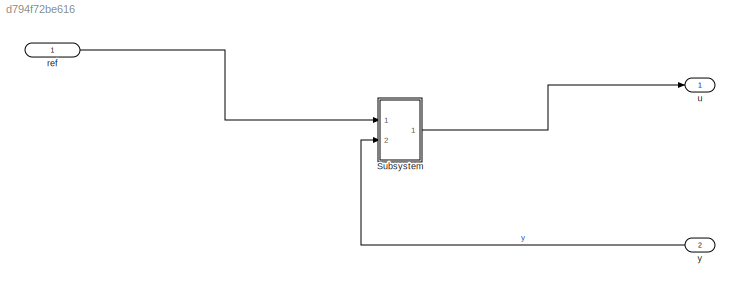
MODEL slx_d794f72be616
KIND model
CONFIG AbsTol = auto
CONFIG EnableMultiTasking = off
CONFIG FixedStep = auto
CONFIG MaxStep = auto
CONFIG MinStep = auto
CONFIG RelTol = 1e-3
CONFIG SampleTimeConstraint = Unconstrained
CONFIG Solver = VariableStepAuto
CONFIG SolverName = VariableStepAuto
CONFIG StartTime = 0.0
CONFIG StopTime = 10.0
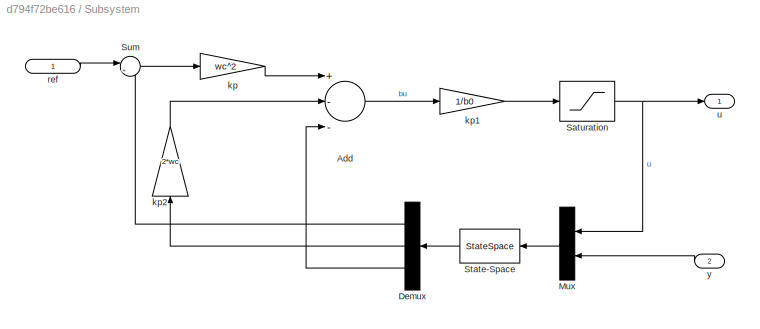
BLOCK [SubSystem] Subsystem
  Ports = [2, 1]
  RequestExecContextInheritance = off
BLOCK [Sum] Subsystem/Add
  InputSameDT = off
  Inputs = +--
  OutDataTypeStr = Inherit: Inherit via internal rule
  Ports = [3, 1]
  SaturateOnIntegerOverflow = off
BLOCK [Demux] Subsystem/Demux
  DisplayOption = bar
  Outputs = 3
  Ports = [1, 3]
BLOCK [Mux] Subsystem/Mux
  DisplayOption = bar
  Inputs = 2
  Ports = [2, 1]
BLOCK [Saturate] Subsystem/Saturation
  InputPortMap = u0
  LowerLimit = 0.01
  Ports = [1, 1]
  UpperLimit = 0.95
BLOCK [StateSpace] Subsystem/State-Space
  A = [-3*w0 1 0;-3*w0^2 0 1;-w0^3 0 0]
  B = [0 3*w0;b0 3*w0^2;0 w0^3]
  C = [1 0 0;0 1 0;0 0 1]
  D = [0 0;0 0;0 0]
  InitialCondition = 0
  Ports = [1, 1]
BLOCK [Sum] Subsystem/Sum
  IconShape = round
  InputSameDT = off
  Inputs = |+-
  OutDataTypeStr = Inherit: Inherit via internal rule
  Ports = [2, 1]
  SaturateOnIntegerOverflow = off
BLOCK [Gain] Subsystem/kp
  Gain = wc^2
  OutDataTypeStr = Inherit: Inherit via internal rule
  ParamDataTypeStr = Inherit: Inherit via internal rule
  SaturateOnIntegerOverflow = off
BLOCK [Gain] Subsystem/kp1
  Gain = 1/b0
  OutDataTypeStr = Inherit: Inherit via internal rule
  ParamDataTypeStr = Inherit: Inherit via internal rule
  SaturateOnIntegerOverflow = off
BLOCK [Gain] Subsystem/kp2
  Gain = 2*wc
  OutDataTypeStr = Inherit: Inherit via internal rule
  ParamDataTypeStr = Inherit: Inherit via internal rule
  SaturateOnIntegerOverflow = off
BLOCK [Inport] Subsystem/ref
  IconDisplay = Port number
BLOCK [Outport] Subsystem/u
  IconDisplay = Port number
BLOCK [Inport] Subsystem/y
  IconDisplay = Port number
  Port = 2
BLOCK [Inport] ref
  IconDisplay = Port number
BLOCK [Outport] u
  IconDisplay = Port number
BLOCK [Inport] y
  IconDisplay = Port number
  Port = 2
LINE Subsystem/Add:1 -> Subsystem/kp1:1
LINE Subsystem/Demux:1 -> Subsystem/Sum:2
LINE Subsystem/Demux:2 -> Subsystem/kp2:1
LINE Subsystem/Demux:3 -> Subsystem/Add:3
LINE Subsystem/Mux:1 -> Subsystem/State-Space:1
NET Subsystem/Saturation:1 -> Subsystem/Mux:1, Subsystem/u:1
LINE Subsystem/State-Space:1 -> Subsystem/Demux:1
LINE Subsystem/Sum:1 -> Subsystem/kp:1
LINE Subsystem/kp1:1 -> Subsystem/Saturation:1
LINE Subsystem/kp2:1 -> Subsystem/Add:2
LINE Subsystem/kp:1 -> Subsystem/Add:1
LINE Subsystem/ref:1 -> Subsystem/Sum:1
LINE Subsystem/y:1 -> Subsystem/Mux:2
LINE Subsystem:1 -> u:1
LINE ref:1 -> Subsystem:1
LINE y:1 -> Subsystem:2
note: NET lines group one-source signal fan-out (src -> all destinations, sorted); 1:1 wires keep LINE
